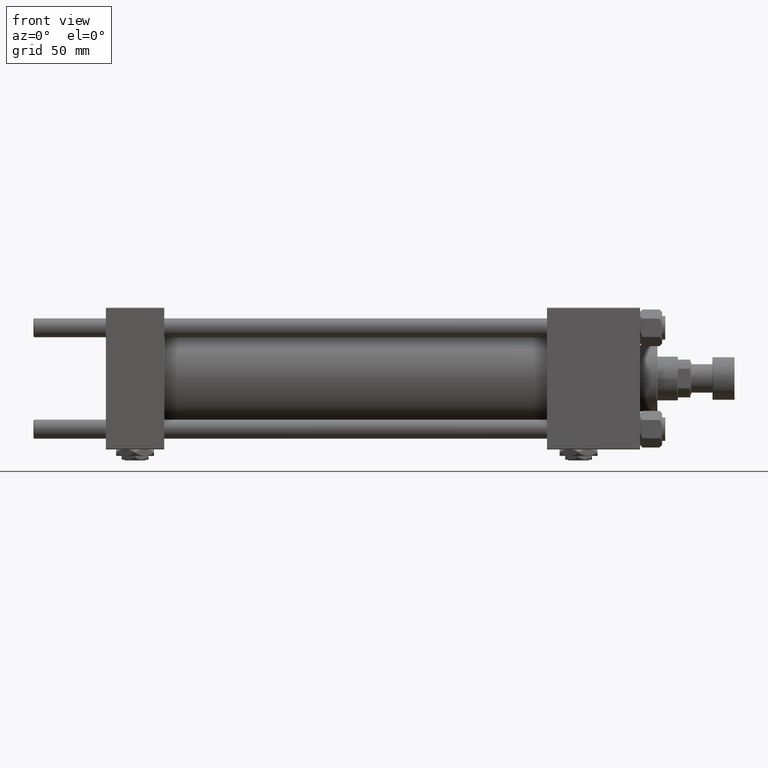
[diagram: clean part render]
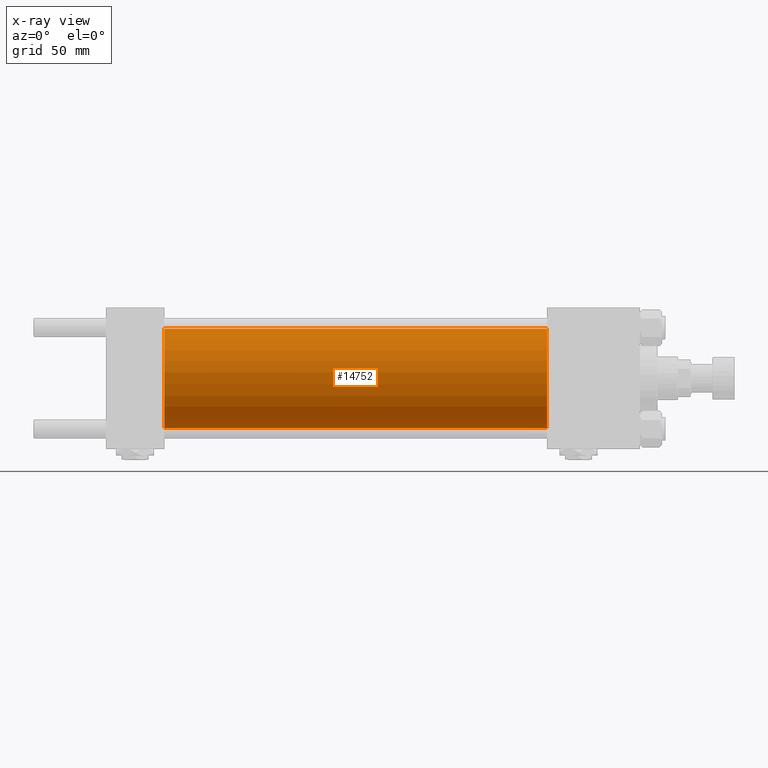
[diagram: x-ray — body ghosted, one internal face saturated and labeled with its STEP entity id]
A machine part, front view, then the same camera in x-ray: the body is ghosted and one INTERNAL B-rep face — a face not visible from any outside direction — is saturated and labeled: STEP entity #14752.
In plain terms, the highlighted cylindrical surface (partial cylindrical patch) has radius 31.5 mm, axis along (-1, -0, -0).
Its self-contained STEP definition (entity closure, byte-faithful):
#681 = CARTESIAN_POINT ( 'NONE',  ( 279.9999999999999432, 0.000000000000000000, 0.000000000000000000 ) ) ;
#1237 = CARTESIAN_POINT ( 'NONE',  ( 37.00000000000000000, 3.857637417314162689E-15, -31.50000000000000000 ) ) ;
#1523 = DIRECTION ( 'NONE',  ( 0.000000000000000000, 0.000000000000000000, -1.000000000000000000 ) ) ;
#3890 = EDGE_LOOP ( 'NONE', ( #44936, #29824, #10580, #12253 ) ) ;
#3999 = EDGE_CURVE ( 'NONE', #30745, #41656, #13625, .T. ) ;
#4765 = DIRECTION ( 'NONE',  ( -1.000000000000000000, -0.000000000000000000, -0.000000000000000000 ) ) ;
#5434 = AXIS2_PLACEMENT_3D ( 'NONE', #41501, #4765, #5786 ) ;
#5477 = CARTESIAN_POINT ( 'NONE',  ( 37.00000000000000000, 0.000000000000000000, 0.000000000000000000 ) ) ;
#5786 = DIRECTION ( 'NONE',  ( 0.000000000000000000, 0.000000000000000000, 1.000000000000000000 ) ) ;
#6831 = VECTOR ( 'NONE', #28721, 1000.000000000000000 ) ;
#9028 = VECTOR ( 'NONE', #24444, 1000.000000000000000 ) ;
#9501 = CYLINDRICAL_SURFACE ( 'NONE', #5434, 31.50000000000000000 ) ;
#10580 = ORIENTED_EDGE ( 'NONE', *, *, #49565, .F. ) ;
#12253 = ORIENTED_EDGE ( 'NONE', *, *, #47602, .F. ) ;
#12825 = CIRCLE ( 'NONE', #38146, 31.50000000000000000 ) ;
#13625 = CIRCLE ( 'NONE', #21235, 31.50000000000000000 ) ;
#14752 = ADVANCED_FACE ( 'NONE', ( #49705 ), #9501, .F. ) ;
#17582 = DIRECTION ( 'NONE',  ( 0.000000000000000000, 0.000000000000000000, -1.000000000000000000 ) ) ;
#19769 = CARTESIAN_POINT ( 'NONE',  ( 279.9999999999999432, 0.000000000000000000, 31.50000000000000000 ) ) ;
#20742 = CARTESIAN_POINT ( 'NONE',  ( 279.9999999999999432, 3.857637417314162689E-15, -31.50000000000000000 ) ) ;
#21235 = AXIS2_PLACEMENT_3D ( 'NONE', #681, #41643, #17582 ) ;
#21615 = DIRECTION ( 'NONE',  ( 1.000000000000000000, 0.000000000000000000, 0.000000000000000000 ) ) ;
#24444 = DIRECTION ( 'NONE',  ( -1.000000000000000000, -0.000000000000000000, -0.000000000000000000 ) ) ;
#24755 = LINE ( 'NONE', #19769, #6831 ) ;
#28721 = DIRECTION ( 'NONE',  ( -1.000000000000000000, -0.000000000000000000, -0.000000000000000000 ) ) ;
#28938 = CARTESIAN_POINT ( 'NONE',  ( 279.9999999999999432, 3.857637417314162689E-15, -31.50000000000000000 ) ) ;
#29824 = ORIENTED_EDGE ( 'NONE', *, *, #33889, .T. ) ;
#30745 = VERTEX_POINT ( 'NONE', #48871 ) ;
#33889 = EDGE_CURVE ( 'NONE', #41656, #41429, #45057, .T. ) ;
#38146 = AXIS2_PLACEMENT_3D ( 'NONE', #5477, #21615, #1523 ) ;
#39253 = VERTEX_POINT ( 'NONE', #40147 ) ;
#40147 = CARTESIAN_POINT ( 'NONE',  ( 37.00000000000000000, 0.000000000000000000, 31.50000000000000000 ) ) ;
#41429 = VERTEX_POINT ( 'NONE', #1237 ) ;
#41501 = CARTESIAN_POINT ( 'NONE',  ( 279.9999999999999432, 0.000000000000000000, 0.000000000000000000 ) ) ;
#41643 = DIRECTION ( 'NONE',  ( 1.000000000000000000, 0.000000000000000000, 0.000000000000000000 ) ) ;
#41656 = VERTEX_POINT ( 'NONE', #28938 ) ;
#44936 = ORIENTED_EDGE ( 'NONE', *, *, #3999, .T. ) ;
#45057 = LINE ( 'NONE', #20742, #9028 ) ;
#47602 = EDGE_CURVE ( 'NONE', #30745, #39253, #24755, .T. ) ;
#48871 = CARTESIAN_POINT ( 'NONE',  ( 279.9999999999999432, 0.000000000000000000, 31.50000000000000000 ) ) ;
#49565 = EDGE_CURVE ( 'NONE', #39253, #41429, #12825, .T. ) ;
#49705 = FACE_OUTER_BOUND ( 'NONE', #3890, .T. ) ;